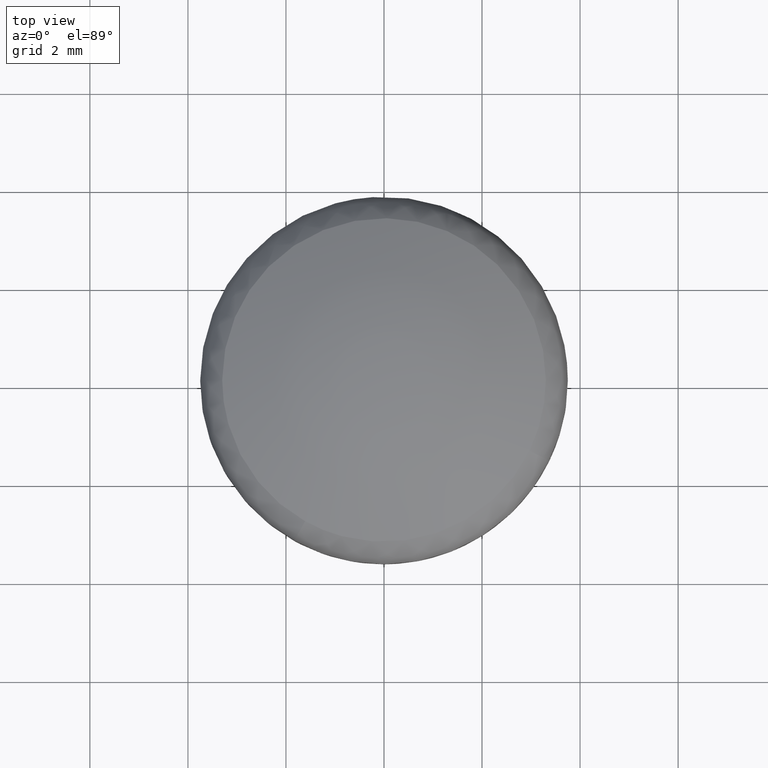
[diagram: clean part render]
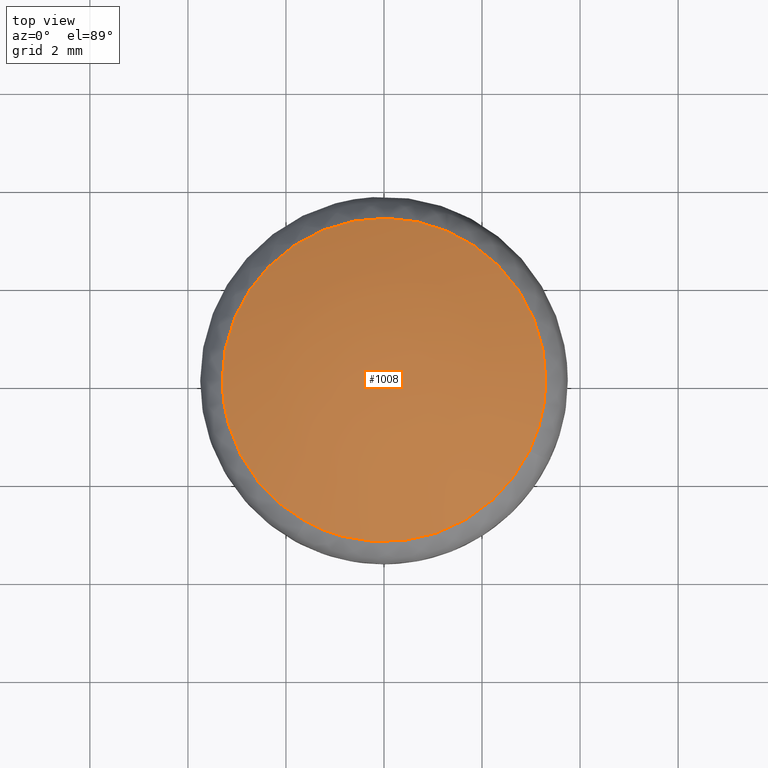
[diagram: same view with one face highlighted and labeled with its STEP entity id]
A machine part, top view. The second image highlights one B-rep face of the part: STEP entity #1008.
In plain terms, the highlighted face is a freeform B-spline surface patch.
Its self-contained STEP definition (entity closure, byte-faithful):
#573=CARTESIAN_POINT('',(-1.610164701237870,-2.881207994377326,0.738222806541390));
#574=VERTEX_POINT('',#573);
#588=CARTESIAN_POINT('',(-3.300604470652410,0.0,0.738222806562486));
#589=VERTEX_POINT('',#588);
#590=CARTESIAN_POINT('',(-1.610164701237870,-2.881207994377326,0.738222806541390));
#591=CARTESIAN_POINT('',(-3.300604470652410,-1.936504782481875,0.738222806562486));
#592=CARTESIAN_POINT('',(-3.300604470652410,0.0,0.738222806562486));
#600=(BOUNDED_CURVE()B_SPLINE_CURVE(2,(#590,#591,#592),.UNSPECIFIED.,.F.,.U.)B_SPLINE_CURVE_WITH_KNOTS((3,3),(0.833121442956602,1.0),.UNSPECIFIED.)CURVE()GEOMETRIC_REPRESENTATION_ITEM()RATIONAL_B_SPLINE_CURVE((0.869991153567357,0.804489609106459,1.0))REPRESENTATION_ITEM(''));
#601=EDGE_CURVE('',#574,#589,#600,.T.);
#603=CARTESIAN_POINT('',(3.300604470652410,0.0,0.738222806562486));
#604=VERTEX_POINT('',#603);
#605=CARTESIAN_POINT('',(-3.300604470652410,0.0,0.738222806562486));
#606=CARTESIAN_POINT('',(-3.300604470652410,3.300604470652410,0.738222806562486));
#607=CARTESIAN_POINT('',(0.0,3.300604470652410,0.738222806562486));
#608=CARTESIAN_POINT('',(3.300604470652410,3.300604470652410,0.738222806562486));
#609=CARTESIAN_POINT('',(3.300604470652410,0.0,0.738222806562486));
#617=(BOUNDED_CURVE()B_SPLINE_CURVE(2,(#605,#606,#607,#608,#609),.UNSPECIFIED.,.F.,.U.)B_SPLINE_CURVE_WITH_KNOTS((3,2,3),(0.0,0.250000000000000,0.500000000000000),.UNSPECIFIED.)CURVE()GEOMETRIC_REPRESENTATION_ITEM()RATIONAL_B_SPLINE_CURVE((1.0,0.707106781186547,1.0,0.707106781186547,1.0))REPRESENTATION_ITEM(''));
#618=EDGE_CURVE('',#589,#604,#617,.T.);
#620=CARTESIAN_POINT('',(2.968580994263313,-1.442746253608641,0.738222806554177));
#621=VERTEX_POINT('',#620);
#622=CARTESIAN_POINT('',(3.300604470652410,0.0,0.738222806562486));
#623=CARTESIAN_POINT('',(3.300604470652409,-0.759577900720227,0.738222806562486));
#624=CARTESIAN_POINT('',(2.968580994263314,-1.442746253608641,0.738222806554177));
#632=(BOUNDED_CURVE()B_SPLINE_CURVE(2,(#622,#623,#624),.UNSPECIFIED.,.F.,.U.)B_SPLINE_CURVE_WITH_KNOTS((3,3),(0.500000000000000,0.574283295446815),.UNSPECIFIED.)CURVE()GEOMETRIC_REPRESENTATION_ITEM()RATIONAL_B_SPLINE_CURVE((1.0,0.912971705970046,0.877661399761368))REPRESENTATION_ITEM(''));
#633=EDGE_CURVE('',#604,#621,#632,.T.);
#680=CARTESIAN_POINT('',(2.968580994263312,-1.442746253608642,0.738222806554177));
#681=CARTESIAN_POINT('',(2.065651955906922,-3.300604470652409,0.738222806562486));
#682=CARTESIAN_POINT('',(0.0,-3.300604470652410,0.738222806562486));
#683=CARTESIAN_POINT('',(-0.859702043927507,-3.300604470652410,0.738222806562486));
#684=CARTESIAN_POINT('',(-1.610164701237869,-2.881207994377327,0.738222806541390));
#692=(BOUNDED_CURVE()B_SPLINE_CURVE(2,(#680,#681,#682,#683,#684),.UNSPECIFIED.,.F.,.U.)B_SPLINE_CURVE_WITH_KNOTS((3,2,3),(0.574283295446816,0.750000000000000,0.833121442956601),.UNSPECIFIED.)CURVE()GEOMETRIC_REPRESENTATION_ITEM()RATIONAL_B_SPLINE_CURVE((0.877661399761367,0.794135075216502,1.0,0.902617172080089,0.869991153567357))REPRESENTATION_ITEM(''));
#693=EDGE_CURVE('',#621,#574,#692,.T.);
#978=CARTESIAN_POINT('',(-3.387241014034124,-3.386513900854512,-0.219378659832171));
#979=CARTESIAN_POINT('',(-1.796157886165920,-3.591544637318839,0.588457975480962));
#980=CARTESIAN_POINT('',(1.796157774877781,-3.591544637318839,0.588457975480962));
#981=CARTESIAN_POINT('',(3.387240828125801,-3.386513924811098,-0.219378565441410));
#982=CARTESIAN_POINT('',(-3.592222410659108,-1.795725647843676,0.588090202381083));
#983=CARTESIAN_POINT('',(-1.911858420274520,-1.911448016217306,1.499999999999997));
#984=CARTESIAN_POINT('',(1.911858301817693,-1.911448016217306,1.499999999999997));
#985=CARTESIAN_POINT('',(3.592222215038216,-1.795725661315584,0.588090308541771));
#986=CARTESIAN_POINT('',(-3.592222410659108,1.796092751650454,0.588090202381086));
#987=CARTESIAN_POINT('',(-1.911858420274520,1.911838777380656,1.500000000000000));
#988=CARTESIAN_POINT('',(1.911858301817693,1.911838777380656,1.500000000000000));
#989=CARTESIAN_POINT('',(3.592222215038216,1.796092765125117,0.588090308541774));
#990=CARTESIAN_POINT('',(-3.387161980667257,3.387127180149308,-0.219689990440083));
#991=CARTESIAN_POINT('',(-1.796113439756144,3.592189972108180,0.588107806221494));
#992=CARTESIAN_POINT('',(1.796113328470759,3.592189972108180,0.588107806221494));
#993=CARTESIAN_POINT('',(3.387161794762711,3.387127204109671,-0.219689896053726));
#1001=(BOUNDED_SURFACE()B_SPLINE_SURFACE(2,2,((#978,#982,#986,#990),(#979,#983,#987,#991),(#980,#984,#988,#992),(#981,#985,#989,#993)),.UNSPECIFIED.,.F.,.F.,.U.)B_SPLINE_SURFACE_WITH_KNOTS((3,1,3),(3,1,3),(1.024440967184305,4.655818515265434,8.287195838350058),(1.025220487290621,4.655818515265434,8.287158753699064),.UNSPECIFIED.)GEOMETRIC_REPRESENTATION_ITEM()RATIONAL_B_SPLINE_SURFACE(((1.128858804173218,1.064443234139129,1.064443234139129,1.128885144074445),(1.064415570034088,1.0,1.0,1.064441909935316),(1.064415570034088,1.0,1.0,1.064441909935316),(1.128858796187542,1.064443226153454,1.064443226153454,1.128885136088770)))REPRESENTATION_ITEM('')SURFACE());
#1002=ORIENTED_EDGE('',*,*,#633,.F.);
#1003=ORIENTED_EDGE('',*,*,#618,.F.);
#1004=ORIENTED_EDGE('',*,*,#601,.F.);
#1005=ORIENTED_EDGE('',*,*,#693,.F.);
#1006=EDGE_LOOP('',(#1002,#1003,#1004,#1005));
#1007=FACE_OUTER_BOUND('',#1006,.T.);
#1008=ADVANCED_FACE('',(#1007),#1001,.T.);